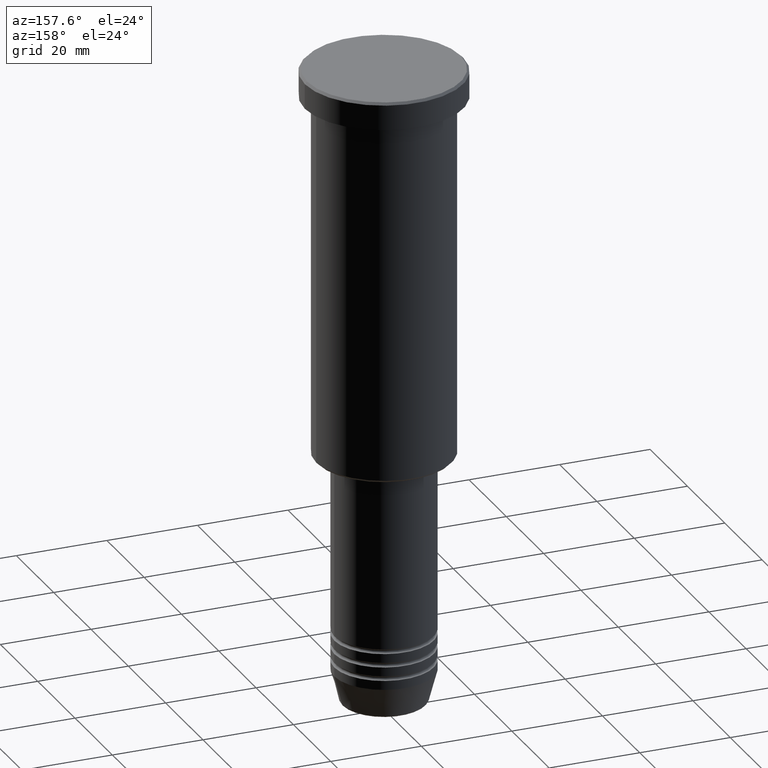
[diagram: clean part render]
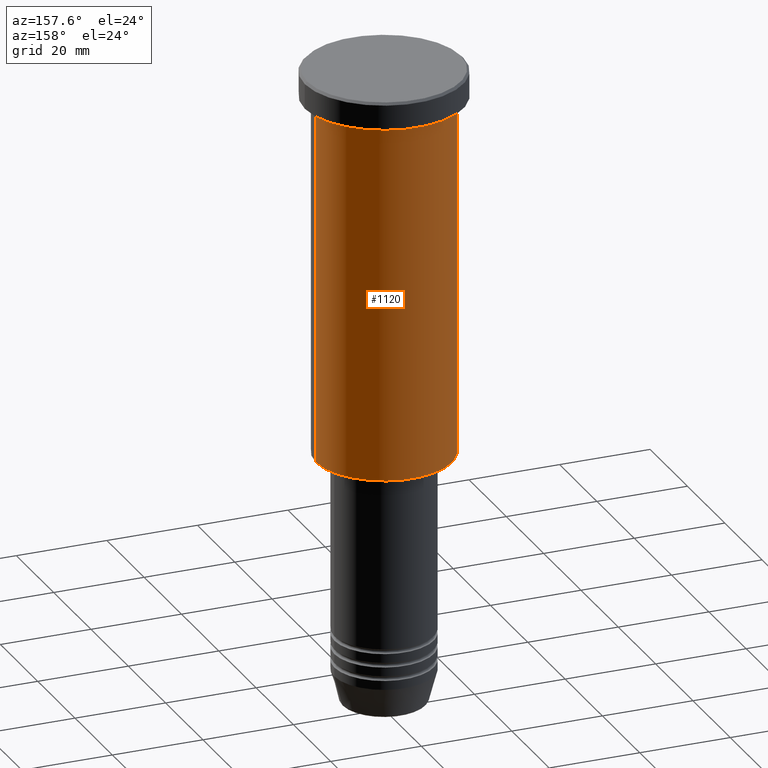
[diagram: same view with one face highlighted and labeled with its STEP entity id]
A machine part, auxiliary view. The second image highlights one B-rep face of the part: STEP entity #1120.
In plain terms, the highlighted cylindrical surface (partial cylindrical patch) has radius 15 mm, axis along (-0, -0, 1).
Its self-contained STEP definition (entity closure, byte-faithful):
#29 = VERTEX_POINT ( 'NONE', #278 ) ;
#42 = CARTESIAN_POINT ( 'NONE',  ( 15.00000000000000000, 0.000000000000000000, -85.50000000000004263 ) ) ;
#44 = EDGE_CURVE ( 'NONE', #321, #29, #478, .T. ) ;
#51 = ORIENTED_EDGE ( 'NONE', *, *, #193, .T. ) ;
#76 = EDGE_LOOP ( 'NONE', ( #226, #51, #1105, #766 ) ) ;
#92 = CARTESIAN_POINT ( 'NONE',  ( 0.000000000000000000, 0.000000000000000000, -85.50000000000004263 ) ) ;
#124 = AXIS2_PLACEMENT_3D ( 'NONE', #92, #187, #516 ) ;
#187 = DIRECTION ( 'NONE',  ( -0.000000000000000000, -0.000000000000000000, 1.000000000000000000 ) ) ;
#193 = EDGE_CURVE ( 'NONE', #29, #873, #473, .T. ) ;
#226 = ORIENTED_EDGE ( 'NONE', *, *, #44, .T. ) ;
#227 = CARTESIAN_POINT ( 'NONE',  ( 15.00000000000000000, 0.000000000000000000, 0.000000000000000000 ) ) ;
#273 = EDGE_CURVE ( 'NONE', #321, #903, #662, .T. ) ;
#278 = CARTESIAN_POINT ( 'NONE',  ( -15.00000000000000000, 1.836970198721029589E-15, -85.50000000000004263 ) ) ;
#321 = VERTEX_POINT ( 'NONE', #42 ) ;
#348 = FACE_OUTER_BOUND ( 'NONE', #76, .T. ) ;
#409 = CARTESIAN_POINT ( 'NONE',  ( 0.000000000000000000, 0.000000000000000000, -6.999999999999995559 ) ) ;
#444 = CYLINDRICAL_SURFACE ( 'NONE', #777, 15.00000000000000000 ) ;
#473 = LINE ( 'NONE', #728, #914 ) ;
#478 = CIRCLE ( 'NONE', #124, 15.00000000000000000 ) ;
#516 = DIRECTION ( 'NONE',  ( -1.000000000000000000, 0.000000000000000000, 0.000000000000000000 ) ) ;
#584 = VECTOR ( 'NONE', #940, 1000.000000000000000 ) ;
#626 = CIRCLE ( 'NONE', #996, 15.00000000000000000 ) ;
#629 = DIRECTION ( 'NONE',  ( -0.000000000000000000, -0.000000000000000000, 1.000000000000000000 ) ) ;
#662 = LINE ( 'NONE', #227, #584 ) ;
#672 = DIRECTION ( 'NONE',  ( 1.000000000000000000, 0.000000000000000000, 0.000000000000000000 ) ) ;
#700 = DIRECTION ( 'NONE',  ( 1.000000000000000000, 0.000000000000000000, 0.000000000000000000 ) ) ;
#728 = CARTESIAN_POINT ( 'NONE',  ( -15.00000000000000000, 1.836970198721029589E-15, 0.000000000000000000 ) ) ;
#766 = ORIENTED_EDGE ( 'NONE', *, *, #273, .F. ) ;
#777 = AXIS2_PLACEMENT_3D ( 'NONE', #806, #1176, #700 ) ;
#794 = DIRECTION ( 'NONE',  ( -0.000000000000000000, -0.000000000000000000, 1.000000000000000000 ) ) ;
#806 = CARTESIAN_POINT ( 'NONE',  ( 0.000000000000000000, 0.000000000000000000, 0.000000000000000000 ) ) ;
#860 = EDGE_CURVE ( 'NONE', #903, #873, #626, .T. ) ;
#873 = VERTEX_POINT ( 'NONE', #1043 ) ;
#903 = VERTEX_POINT ( 'NONE', #1156 ) ;
#914 = VECTOR ( 'NONE', #629, 1000.000000000000000 ) ;
#940 = DIRECTION ( 'NONE',  ( -0.000000000000000000, -0.000000000000000000, 1.000000000000000000 ) ) ;
#996 = AXIS2_PLACEMENT_3D ( 'NONE', #409, #794, #672 ) ;
#1043 = CARTESIAN_POINT ( 'NONE',  ( -15.00000000000000000, 1.836970198721029589E-15, -6.999999999999995559 ) ) ;
#1105 = ORIENTED_EDGE ( 'NONE', *, *, #860, .F. ) ;
#1120 = ADVANCED_FACE ( 'NONE', ( #348 ), #444, .T. ) ;
#1156 = CARTESIAN_POINT ( 'NONE',  ( 15.00000000000000000, 0.000000000000000000, -6.999999999999995559 ) ) ;
#1176 = DIRECTION ( 'NONE',  ( -0.000000000000000000, -0.000000000000000000, 1.000000000000000000 ) ) ;